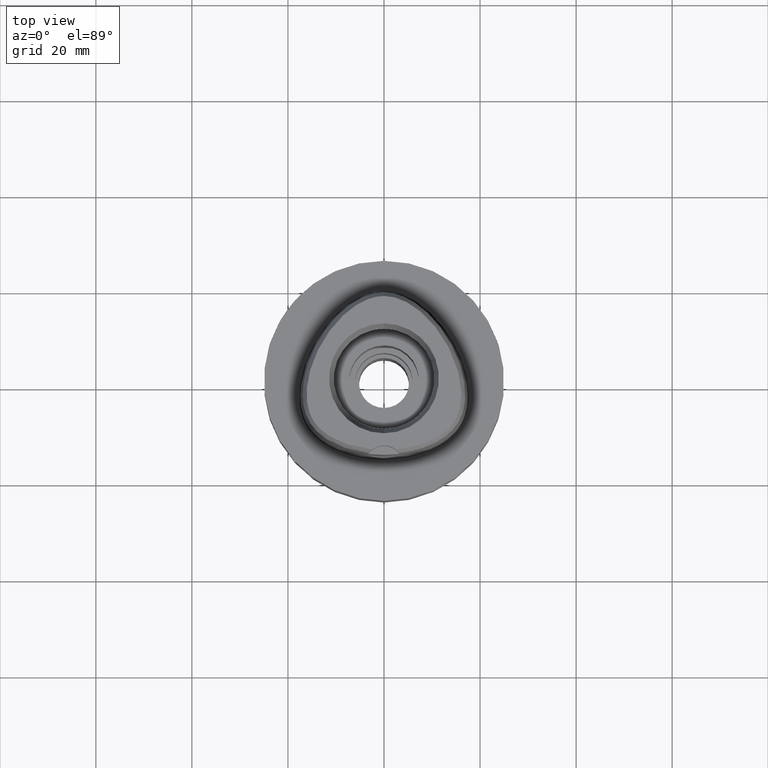
[diagram: clean part render]
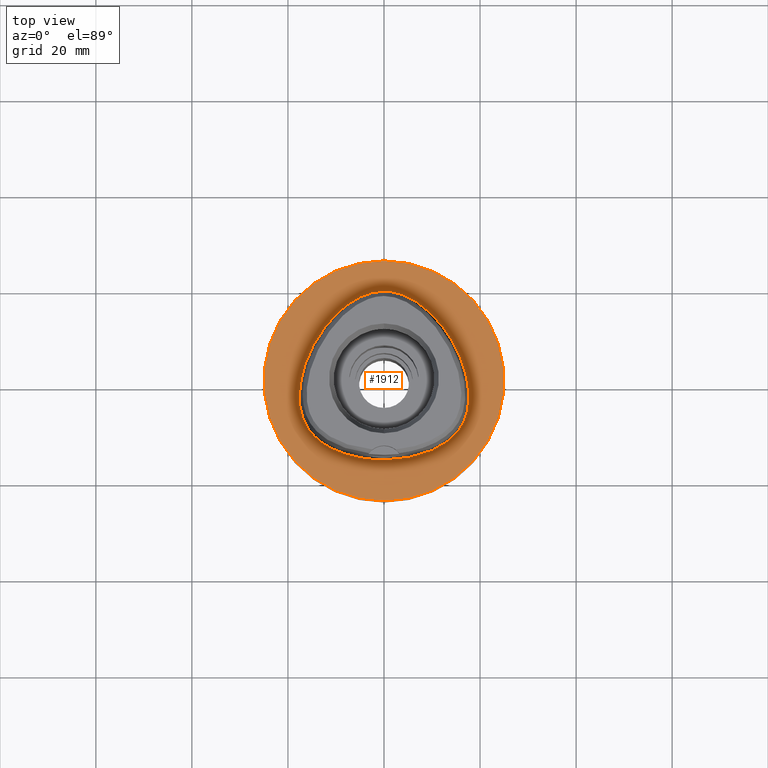
[diagram: same view with one face highlighted and labeled with its STEP entity id]
A machine part, top view. The second image highlights one B-rep face of the part: STEP entity #1912.
In plain terms, the highlighted planar face has unit normal (0, 0, -1).
Its self-contained STEP definition (entity closure, byte-faithful):
#47 = CARTESIAN_POINT ( 'NONE',  ( -11.68694516420488760, -13.70394530964122382, 1.311835889211947909E-07 ) ) ;
#75 = CARTESIAN_POINT ( 'NONE',  ( -16.51672824469457623, 3.703437498879941447, 1.311835889211947909E-07 ) ) ;
#105 = CARTESIAN_POINT ( 'NONE',  ( 0.6801907889400529150, 18.69500004310651775, -1.724618299705311594E-06 ) ) ;
#131 = ORIENTED_EDGE ( 'NONE', *, *, #2423, .F. ) ;
#218 = EDGE_LOOP ( 'NONE', ( #131, #2233 ) ) ;
#403 = CARTESIAN_POINT ( 'NONE',  ( -16.20602471679266543, -9.356552732731397981, 1.311835889211947909E-07 ) ) ;
#419 = EDGE_CURVE ( 'NONE', #4298, #2217, #2775, .T. ) ;
#454 = CARTESIAN_POINT ( 'NONE',  ( -17.16495051465363630, -7.165908202188214560, 1.311835889211947909E-07 ) ) ;
#476 = DIRECTION ( 'NONE',  ( 0.0000000000000000000, -1.000000000000000000, 0.0000000000000000000 ) ) ;
#514 = CARTESIAN_POINT ( 'NONE',  ( 7.243424767392001164E-11, 18.69499999997999851, 1.586878776530999888E-13 ) ) ;
#549 = B_SPLINE_CURVE_WITH_KNOTS ( 'NONE', 3,
 ( #1900, #1563, #3071, #3476, #4598, #1177, #1585, #4624, #1333, #2106, #4352, #3530, #3904, #926, #4277, #949, #2444, #854, #3999, #3969, #105, #514 ),
 .UNSPECIFIED., .F., .F.,
 ( 4, 1, 1, 1, 1, 1, 1, 1, 1, 1, 1, 1, 1, 1, 1, 1, 1, 1, 1, 4 ),
 ( 0.0000000000000000000, 0.08333333333350000094, 0.1666666666668000230, 0.2083333333333000081, 0.2499999999998999967, 0.2916666666666000163, 0.3124999999998999689, 0.3333333333331000015, 0.3541666666665000407, 0.3749999999997999933, 0.4166666666664000096, 0.4583333333330000259, 0.4999999999995999866, 0.5833333333328000192, 0.6666666666660999718, 0.7499999999993000044, 0.8333333333325000369, 0.9166666666657000695, 0.9583333333322999747, 1.000000000000000000 ),
 .UNSPECIFIED. ) ;
#664 = ORIENTED_EDGE ( 'NONE', *, *, #2065, .F. ) ;
#750 = CARTESIAN_POINT ( 'NONE',  ( -14.78833380161314182, -11.28232909929586114, 1.311835889211947909E-07 ) ) ;
#801 = CARTESIAN_POINT ( 'NONE',  ( -1.726168200655999983E-11, -16.45500000000000185, 1.598351081118999833E-13 ) ) ;
#830 = CARTESIAN_POINT ( 'NONE',  ( 7.243424767392001164E-11, 18.69499999997999851, 1.586878776530999888E-13 ) ) ;
#845 = PLANE ( 'NONE',  #3909 ) ;
#854 = CARTESIAN_POINT ( 'NONE',  ( 7.967839691079166897, 15.83070315920801718, -1.724618299705311594E-06 ) ) ;
#871 = CARTESIAN_POINT ( 'NONE',  ( 0.0000000000000000000, -25.00000000000000000, 0.0000000000000000000 ) ) ;
#926 = CARTESIAN_POINT ( 'NONE',  ( 17.49754716575788649, -0.2285937424301269505, -1.724618299705311594E-06 ) ) ;
#949 = CARTESIAN_POINT ( 'NONE',  ( 14.38008123442372721, 8.302343771663288408, -1.724618299705311594E-06 ) ) ;
#1075 = VERTEX_POINT ( 'NONE', #1228 ) ;
#1177 = CARTESIAN_POINT ( 'NONE',  ( 13.50690096153880404, -12.48264651843018314, -1.724618299705311594E-06 ) ) ;
#1228 = CARTESIAN_POINT ( 'NONE',  ( 7.243424767392001164E-11, 18.69499999997999851, 1.586878776530999888E-13 ) ) ;
#1320 = ORIENTED_EDGE ( 'NONE', *, *, #419, .F. ) ;
#1333 = CARTESIAN_POINT ( 'NONE',  ( 16.20602475704313861, -9.356552755972312951, -1.724618299705311594E-06 ) ) ;
#1563 = CARTESIAN_POINT ( 'NONE',  ( 1.683697725074135843, -16.45500004311455555, -1.724618299705311594E-06 ) ) ;
#1585 = CARTESIAN_POINT ( 'NONE',  ( 14.78833383539567770, -11.28232913133149928, -1.724618299705311594E-06 ) ) ;
#1589 = AXIS2_PLACEMENT_3D ( 'NONE', #2275, #3800, #2346 ) ;
#1637 = CARTESIAN_POINT ( 'NONE',  ( -16.66912841838875536, -8.445800779915451528, 1.311835889211947909E-07 ) ) ;
#1700 = CARTESIAN_POINT ( 'NONE',  ( 0.0000000000000000000, 25.00000000000000000, 0.0000000000000000000 ) ) ;
#1900 = CARTESIAN_POINT ( 'NONE',  ( -1.726168200655999983E-11, -16.45500000000000185, 1.598351081118999833E-13 ) ) ;
#1912 = ADVANCED_FACE ( 'NONE', ( #3896, #2683 ), #845, .F. ) ;
#1952 = CARTESIAN_POINT ( 'NONE',  ( -17.49754711982549082, -0.2285937505758003085, 1.311835889211947909E-07 ) ) ;
#2065 = EDGE_CURVE ( 'NONE', #2217, #4298, #4146, .T. ) ;
#2106 = CARTESIAN_POINT ( 'NONE',  ( 16.66912846085714861, -8.445800798803887233, -1.724618299705311594E-06 ) ) ;
#2108 = DIRECTION ( 'NONE',  ( 0.0000000000000000000, 0.0000000000000000000, -1.000000000000000000 ) ) ;
#2126 = DIRECTION ( 'NONE',  ( 0.0000000000000000000, -1.000000000000000000, 0.0000000000000000000 ) ) ;
#2217 = VERTEX_POINT ( 'NONE', #871 ) ;
#2233 = ORIENTED_EDGE ( 'NONE', *, *, #2574, .F. ) ;
#2275 = CARTESIAN_POINT ( 'NONE',  ( 0.0000000000000000000, 1.284838189324999924E-14, 0.0000000000000000000 ) ) ;
#2300 = CARTESIAN_POINT ( 'NONE',  ( -13.50690093276619663, -12.48264648179091374, 1.311835889211947909E-07 ) ) ;
#2345 = CARTESIAN_POINT ( 'NONE',  ( -14.38008119404777041, 8.302343748351805885, 1.311835889211947909E-07 ) ) ;
#2346 = DIRECTION ( 'NONE',  ( 0.0000000000000000000, 1.000000000000000000, 0.0000000000000000000 ) ) ;
#2413 = CARTESIAN_POINT ( 'NONE',  ( -1.726168200655999983E-11, -16.45500000000000185, 1.598351081118999833E-13 ) ) ;
#2416 = EDGE_LOOP ( 'NONE', ( #1320, #664 ) ) ;
#2423 = EDGE_CURVE ( 'NONE', #1075, #4157, #4427, .T. ) ;
#2444 = CARTESIAN_POINT ( 'NONE',  ( 11.46563511336676022, 12.45218752796509243, -1.724618299705311594E-06 ) ) ;
#2574 = EDGE_CURVE ( 'NONE', #4157, #1075, #549, .T. ) ;
#2683 = FACE_BOUND ( 'NONE', #218, .T. ) ;
#2688 = CARTESIAN_POINT ( 'NONE',  ( -5.051093166991400096, -16.15562499674982533, 1.311835889211947909E-07 ) ) ;
#2716 = CARTESIAN_POINT ( 'NONE',  ( -2.040572356992104819, 18.55015624676588715, 1.311835889211947909E-07 ) ) ;
#2775 = CIRCLE ( 'NONE', #1589, 25.00000000000000000 ) ;
#3071 = CARTESIAN_POINT ( 'NONE',  ( 5.051093175214913522, -16.15562504267512978, -1.724618299705311594E-06 ) ) ;
#3198 = CARTESIAN_POINT ( 'NONE',  ( 0.0000000000000000000, 1.284838189324999924E-14, 0.0000000000000000000 ) ) ;
#3417 = CARTESIAN_POINT ( 'NONE',  ( -15.64884223989832002, -10.21298827931310349, 1.311835889211947909E-07 ) ) ;
#3476 = CARTESIAN_POINT ( 'NONE',  ( 8.946741570972701396, -15.03902347824969787, -1.724618299705311594E-06 ) ) ;
#3530 = CARTESIAN_POINT ( 'NONE',  ( 17.56373947219753617, -5.455996099884929507, -1.724618299705311594E-06 ) ) ;
#3774 = CARTESIAN_POINT ( 'NONE',  ( -8.946741555060219397, -15.03902343439987987, 1.311835889211947909E-07 ) ) ;
#3799 = CARTESIAN_POINT ( 'NONE',  ( -17.71143735232331551, -3.269218750022057751, 1.311835889211947909E-07 ) ) ;
#3800 = DIRECTION ( 'NONE',  ( 0.0000000000000000000, 0.0000000000000000000, -1.000000000000000000 ) ) ;
#3827 = CARTESIAN_POINT ( 'NONE',  ( -17.56373942607460137, -5.455996093283419057, 1.311835889211947909E-07 ) ) ;
#3854 = CARTESIAN_POINT ( 'NONE',  ( -0.6801907856321687262, 18.69499999671970158, 1.311835889211947909E-07 ) ) ;
#3877 = CARTESIAN_POINT ( 'NONE',  ( -11.46563507770985524, 12.45218749787802182, 1.311835889211947909E-07 ) ) ;
#3896 = FACE_OUTER_BOUND ( 'NONE', #2416, .T. ) ;
#3904 = CARTESIAN_POINT ( 'NONE',  ( 17.71143739886225532, -3.269218749718620476, -1.724618299705311594E-06 ) ) ;
#3909 = AXIS2_PLACEMENT_3D ( 'NONE', #4217, #4269, #476 ) ;
#3969 = CARTESIAN_POINT ( 'NONE',  ( 2.040572366544298966, 18.55015629245400888, -1.724618299705311594E-06 ) ) ;
#3999 = CARTESIAN_POINT ( 'NONE',  ( 4.728927225346570395, 17.73480472691698395, -1.724618299705311594E-06 ) ) ;
#4146 = CIRCLE ( 'NONE', #4787, 25.00000000000000000 ) ;
#4157 = VERTEX_POINT ( 'NONE', #2413 ) ;
#4217 = CARTESIAN_POINT ( 'NONE',  ( 0.0000000000000000000, 1.224646799146999965E-14, 0.0000000000000000000 ) ) ;
#4221 = CARTESIAN_POINT ( 'NONE',  ( -1.683697722334211555, -16.45499999672029645, 1.311835889211947909E-07 ) ) ;
#4269 = DIRECTION ( 'NONE',  ( 0.0000000000000000000, 0.0000000000000000000, -1.000000000000000000 ) ) ;
#4272 = CARTESIAN_POINT ( 'NONE',  ( -4.728927205406693091, 17.73480468449544034, 1.311835889211947909E-07 ) ) ;
#4277 = CARTESIAN_POINT ( 'NONE',  ( 16.51672828858816899, 3.703437514718491030, -1.724618299705311594E-06 ) ) ;
#4298 = VERTEX_POINT ( 'NONE', #1700 ) ;
#4352 = CARTESIAN_POINT ( 'NONE',  ( 17.16495055928269764, -7.165908215436208373, -1.724618299705311594E-06 ) ) ;
#4427 = B_SPLINE_CURVE_WITH_KNOTS ( 'NONE', 3,
 ( #830, #3854, #2716, #4272, #4653, #3877, #2345, #75, #1952, #3799, #3827, #454, #1637, #403, #3417, #750, #2300, #47, #3774, #2688, #4221, #801 ),
 .UNSPECIFIED., .F., .F.,
 ( 4, 1, 1, 1, 1, 1, 1, 1, 1, 1, 1, 1, 1, 1, 1, 1, 1, 1, 1, 4 ),
 ( 0.0000000000000000000, 0.04166666666808999803, 0.08333333333469000737, 0.1666666666679000042, 0.2500000000011000090, 0.3333333333342999860, 0.4166666666675999942, 0.5000000000008000267, 0.5416666666674000430, 0.5833333333340000593, 0.6250000000005999645, 0.6458333333339000282, 0.6666666666671999808, 0.6875000000005000445, 0.7083333333337999971, 0.7500000000004000134, 0.7916666666671000607, 0.8333333333336000459, 0.9166666666668999985, 1.000000000000000000 ),
 .UNSPECIFIED. ) ;
#4598 = CARTESIAN_POINT ( 'NONE',  ( 11.68694518722046283, -13.70394535008871451, -1.724618299705311594E-06 ) ) ;
#4624 = CARTESIAN_POINT ( 'NONE',  ( 15.64884227749009327, -10.21298830665158697, -1.724618299705311594E-06 ) ) ;
#4653 = CARTESIAN_POINT ( 'NONE',  ( -7.967839662182041316, 15.83070312239535227, 1.311835889211947909E-07 ) ) ;
#4787 = AXIS2_PLACEMENT_3D ( 'NONE', #3198, #2108, #2126 ) ;